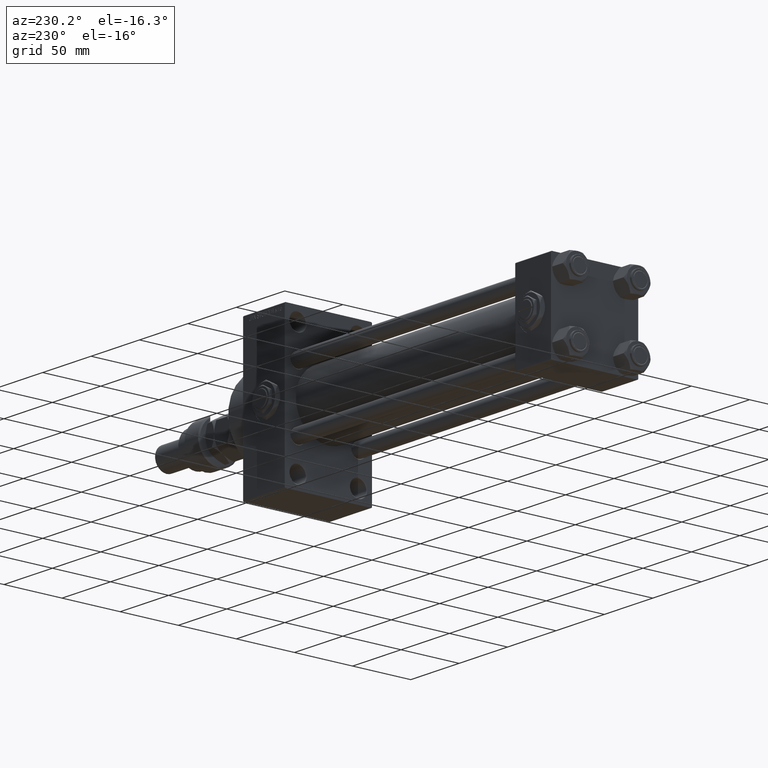
[diagram: clean part render]
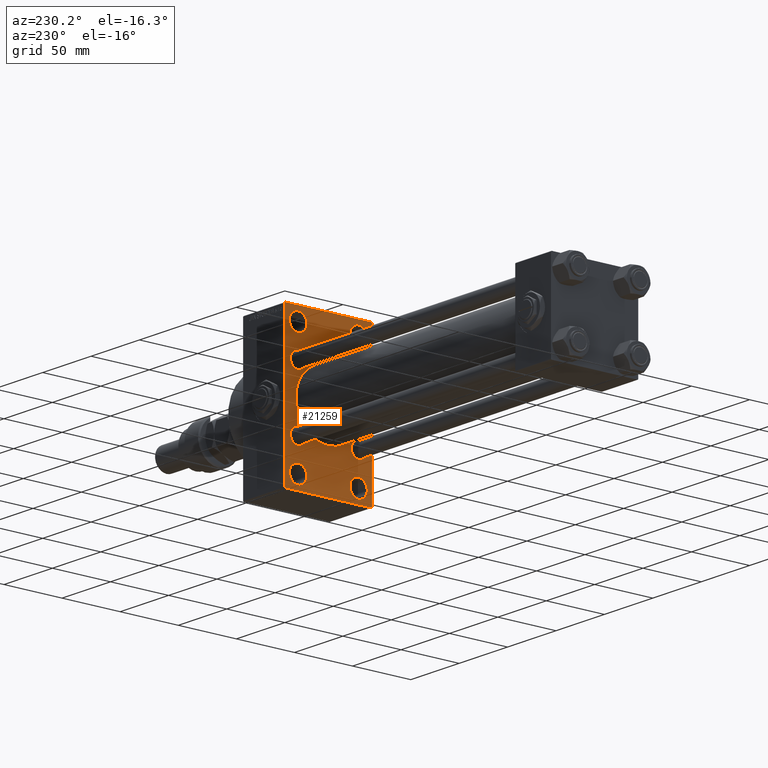
[diagram: same view with one face highlighted and labeled with its STEP entity id]
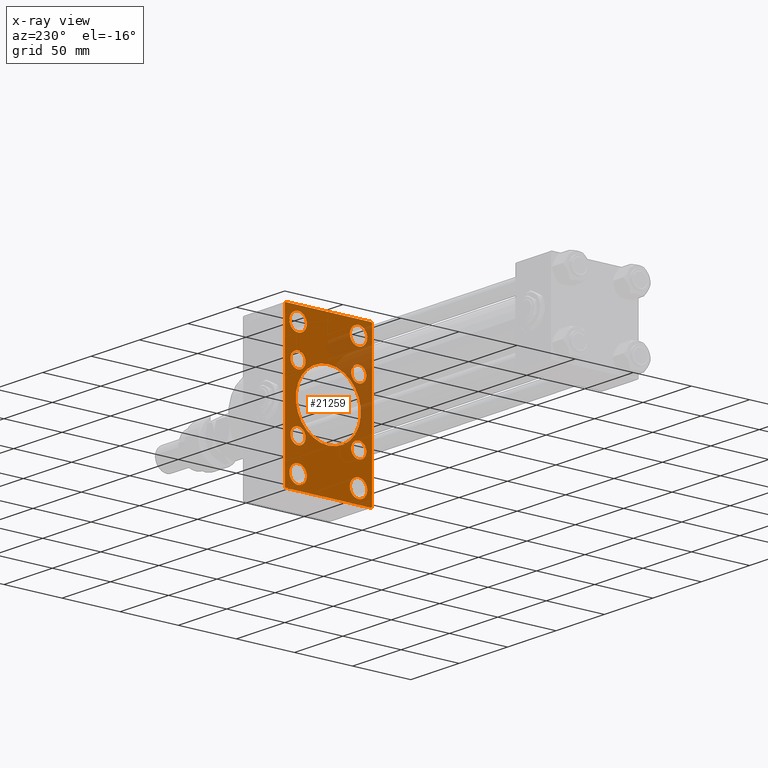
[diagram: x-ray of the same camera — body ghosted, the highlighted face saturated]
A machine part, auxiliary view. The second image highlights one B-rep face of the part: STEP entity #21259.
The next image is the same camera in x-ray: the body ghosted, the highlighted face saturated — about 20% of this face is hidden behind the body in this view.
In plain terms, the highlighted planar face has unit normal (-1, 0, 0).
Its self-contained STEP definition (entity closure, byte-faithful):
#56 = CARTESIAN_POINT ( 'NONE',  ( 274.9999999999999432, -50.49999999999945999, -50.50000000000086686 ) ) ;
#122 = VERTEX_POINT ( 'NONE', #39044 ) ;
#344 = VERTEX_POINT ( 'NONE', #6724 ) ;
#456 = ORIENTED_EDGE ( 'NONE', *, *, #36312, .T. ) ;
#484 = DIRECTION ( 'NONE',  ( 0.000000000000000000, -1.000000000000000000, -1.850371707708594563E-16 ) ) ;
#486 = EDGE_CURVE ( 'NONE', #5936, #3722, #46856, .T. ) ;
#695 = CARTESIAN_POINT ( 'NONE',  ( 274.9999999999999432, 26.00000000000000000, -52.49999999999999289 ) ) ;
#1111 = CIRCLE ( 'NONE', #12107, 28.00000000000000000 ) ;
#1149 = DIRECTION ( 'NONE',  ( 1.000000000000000000, -0.000000000000000000, 0.000000000000000000 ) ) ;
#1190 = VERTEX_POINT ( 'NONE', #16814 ) ;
#1830 = ORIENTED_EDGE ( 'NONE', *, *, #11895, .T. ) ;
#1937 = CARTESIAN_POINT ( 'NONE',  ( 274.9999999999999432, -36.99999999999993605, -64.00000000000001421 ) ) ;
#2570 = ORIENTED_EDGE ( 'NONE', *, *, #37012, .T. ) ;
#2671 = ORIENTED_EDGE ( 'NONE', *, *, #15209, .T. ) ;
#3059 = ORIENTED_EDGE ( 'NONE', *, *, #13664, .T. ) ;
#3081 = ORIENTED_EDGE ( 'NONE', *, *, #13797, .T. ) ;
#3385 = FACE_BOUND ( 'NONE', #49104, .T. ) ;
#3455 = DIRECTION ( 'NONE',  ( 1.000000000000000000, -0.000000000000000000, 0.000000000000000000 ) ) ;
#3653 = VERTEX_POINT ( 'NONE', #20087 ) ;
#3693 = CARTESIAN_POINT ( 'NONE',  ( 274.9999999999999432, -26.14999999999999147, -19.65000000000000213 ) ) ;
#3722 = VERTEX_POINT ( 'NONE', #3693 ) ;
#4012 = EDGE_LOOP ( 'NONE', ( #4338, #47209 ) ) ;
#4067 = EDGE_CURVE ( 'NONE', #1190, #41899, #7223, .T. ) ;
#4338 = ORIENTED_EDGE ( 'NONE', *, *, #33171, .T. ) ;
#4386 = VERTEX_POINT ( 'NONE', #29987 ) ;
#4445 = CARTESIAN_POINT ( 'NONE',  ( 274.9999999999999432, 26.14999999999999858, -26.15000000000000213 ) ) ;
#4500 = CARTESIAN_POINT ( 'NONE',  ( 274.9999999999999432, -26.14999999999999147, 26.15000000000000924 ) ) ;
#4556 = VECTOR ( 'NONE', #35781, 999.9999999999998863 ) ;
#4576 = EDGE_LOOP ( 'NONE', ( #37960, #3081 ) ) ;
#4678 = EDGE_CURVE ( 'NONE', #122, #43245, #8969, .T. ) ;
#5067 = DIRECTION ( 'NONE',  ( -0.000000000000000000, 0.7071067811865524577, 0.7071067811865426878 ) ) ;
#5285 = CIRCLE ( 'NONE', #25549, 7.499999999999951150 ) ;
#5458 = AXIS2_PLACEMENT_3D ( 'NONE', #25910, #37823, #45780 ) ;
#5936 = VERTEX_POINT ( 'NONE', #33344 ) ;
#6065 = EDGE_LOOP ( 'NONE', ( #10240, #6800 ) ) ;
#6680 = LINE ( 'NONE', #38685, #27331 ) ;
#6724 = CARTESIAN_POINT ( 'NONE',  ( 274.9999999999999432, -25.99999999999999645, -45.00000000000004263 ) ) ;
#6800 = ORIENTED_EDGE ( 'NONE', *, *, #31422, .T. ) ;
#6996 = CARTESIAN_POINT ( 'NONE',  ( 274.9999999999999432, 26.14999999999999858, -32.65000000000001279 ) ) ;
#7067 = CARTESIAN_POINT ( 'NONE',  ( 274.9999999999999432, -2.602085213965210642E-15, 0.000000000000000000 ) ) ;
#7223 = CIRCLE ( 'NONE', #30036, 7.499999999999951150 ) ;
#7378 = AXIS2_PLACEMENT_3D ( 'NONE', #18120, #19090, #41938 ) ;
#7409 = ORIENTED_EDGE ( 'NONE', *, *, #47013, .T. ) ;
#7822 = VERTEX_POINT ( 'NONE', #48922 ) ;
#8597 = EDGE_LOOP ( 'NONE', ( #7409, #16562 ) ) ;
#8969 = CIRCLE ( 'NONE', #39362, 28.00000000000000000 ) ;
#9145 = CIRCLE ( 'NONE', #22659, 6.500000000000008882 ) ;
#9336 = VERTEX_POINT ( 'NONE', #15392 ) ;
#9655 = AXIS2_PLACEMENT_3D ( 'NONE', #39638, #15561, #21359 ) ;
#10092 = CIRCLE ( 'NONE', #21907, 7.499999999999951150 ) ;
#10240 = ORIENTED_EDGE ( 'NONE', *, *, #4067, .T. ) ;
#10286 = FACE_OUTER_BOUND ( 'NONE', #44008, .T. ) ;
#10516 = DIRECTION ( 'NONE',  ( 0.000000000000000000, 0.000000000000000000, -1.000000000000000000 ) ) ;
#10541 = CARTESIAN_POINT ( 'NONE',  ( 274.9999999999999432, 0.000000000000000000, 0.000000000000000000 ) ) ;
#10877 = DIRECTION ( 'NONE',  ( 0.000000000000000000, 0.000000000000000000, 1.000000000000000000 ) ) ;
#11055 = FACE_BOUND ( 'NONE', #42134, .T. ) ;
#11219 = ORIENTED_EDGE ( 'NONE', *, *, #20564, .T. ) ;
#11885 = CARTESIAN_POINT ( 'NONE',  ( 274.9999999999999432, 37.50000000000000000, 63.99999999999998579 ) ) ;
#11895 = EDGE_CURVE ( 'NONE', #45105, #344, #22663, .T. ) ;
#12107 = AXIS2_PLACEMENT_3D ( 'NONE', #7067, #23187, #10516 ) ;
#12109 = DIRECTION ( 'NONE',  ( 1.000000000000000000, -0.000000000000000000, 0.000000000000000000 ) ) ;
#12320 = DIRECTION ( 'NONE',  ( 1.000000000000000000, -0.000000000000000000, 0.000000000000000000 ) ) ;
#12335 = EDGE_CURVE ( 'NONE', #47052, #32621, #42118, .T. ) ;
#13389 = DIRECTION ( 'NONE',  ( 0.000000000000000000, 0.000000000000000000, 1.000000000000000000 ) ) ;
#13591 = CARTESIAN_POINT ( 'NONE',  ( 274.9999999999999432, -25.99999999999999645, 52.50000000000000000 ) ) ;
#13654 = VERTEX_POINT ( 'NONE', #31202 ) ;
#13664 = EDGE_CURVE ( 'NONE', #14615, #47591, #51828, .T. ) ;
#13797 = EDGE_CURVE ( 'NONE', #16049, #29552, #36267, .T. ) ;
#14615 = VERTEX_POINT ( 'NONE', #16973 ) ;
#14636 = EDGE_CURVE ( 'NONE', #7822, #49532, #49515, .T. ) ;
#14654 = DIRECTION ( 'NONE',  ( 1.000000000000000000, -0.000000000000000000, 0.000000000000000000 ) ) ;
#14674 = AXIS2_PLACEMENT_3D ( 'NONE', #21804, #43414, #10877 ) ;
#14745 = CARTESIAN_POINT ( 'NONE',  ( 274.9999999999999432, -25.99999999999999645, 45.00000000000004974 ) ) ;
#15209 = EDGE_CURVE ( 'NONE', #3653, #47551, #28714, .T. ) ;
#15288 = VERTEX_POINT ( 'NONE', #46908 ) ;
#15313 = VERTEX_POINT ( 'NONE', #1937 ) ;
#15392 = CARTESIAN_POINT ( 'NONE',  ( 274.9999999999999432, -37.49999999999999289, -63.49999999999997158 ) ) ;
#15561 = DIRECTION ( 'NONE',  ( 1.000000000000000000, -0.000000000000000000, 0.000000000000000000 ) ) ;
#15670 = CARTESIAN_POINT ( 'NONE',  ( 274.9999999999999432, -37.49999999999999289, 63.99999999999997158 ) ) ;
#15775 = CARTESIAN_POINT ( 'NONE',  ( 274.9999999999999432, -26.14999999999999147, 26.15000000000000924 ) ) ;
#16049 = VERTEX_POINT ( 'NONE', #35907 ) ;
#16531 = ORIENTED_EDGE ( 'NONE', *, *, #29321, .T. ) ;
#16562 = ORIENTED_EDGE ( 'NONE', *, *, #486, .T. ) ;
#16814 = CARTESIAN_POINT ( 'NONE',  ( 274.9999999999999432, 26.00000000000000000, -45.00000000000004263 ) ) ;
#16973 = CARTESIAN_POINT ( 'NONE',  ( 274.9999999999999432, 37.50000000000000000, 63.49999999999992895 ) ) ;
#17098 = VERTEX_POINT ( 'NONE', #34819 ) ;
#17808 = EDGE_CURVE ( 'NONE', #7822, #9336, #24922, .T. ) ;
#17999 = DIRECTION ( 'NONE',  ( 0.000000000000000000, 0.000000000000000000, 1.000000000000000000 ) ) ;
#18120 = CARTESIAN_POINT ( 'NONE',  ( 274.9999999999999432, -26.14999999999999147, -26.15000000000000924 ) ) ;
#18436 = AXIS2_PLACEMENT_3D ( 'NONE', #50912, #14654, #47456 ) ;
#18489 = ORIENTED_EDGE ( 'NONE', *, *, #38336, .T. ) ;
#18504 = DIRECTION ( 'NONE',  ( 0.000000000000000000, -5.421010862427522170E-17, -1.000000000000000000 ) ) ;
#18810 = ORIENTED_EDGE ( 'NONE', *, *, #42518, .T. ) ;
#19090 = DIRECTION ( 'NONE',  ( 1.000000000000000000, -0.000000000000000000, 0.000000000000000000 ) ) ;
#19414 = AXIS2_PLACEMENT_3D ( 'NONE', #13591, #1149, #49577 ) ;
#19513 = DIRECTION ( 'NONE',  ( -1.000000000000000000, 0.000000000000000000, -0.000000000000000000 ) ) ;
#19952 = AXIS2_PLACEMENT_3D ( 'NONE', #43665, #3455, #22771 ) ;
#19961 = CARTESIAN_POINT ( 'NONE',  ( 274.9999999999999432, 26.00000000000000000, 52.49999999999999289 ) ) ;
#20087 = CARTESIAN_POINT ( 'NONE',  ( 274.9999999999999432, -25.99999999999999645, 59.99999999999995026 ) ) ;
#20177 = ORIENTED_EDGE ( 'NONE', *, *, #12335, .T. ) ;
#20431 = LINE ( 'NONE', #25182, #29819 ) ;
#20564 = EDGE_CURVE ( 'NONE', #17098, #4386, #10092, .T. ) ;
#20608 = LINE ( 'NONE', #11885, #31847 ) ;
#21259 = ADVANCED_FACE ( 'NONE', ( #11055, #27452, #46540, #23210, #3385, #35646, #51543, #27195, #34621, #10286 ), #50772, .T. ) ;
#21298 = LINE ( 'NONE', #43896, #51702 ) ;
#21353 = DIRECTION ( 'NONE',  ( 0.000000000000000000, 0.000000000000000000, 1.000000000000000000 ) ) ;
#21359 = DIRECTION ( 'NONE',  ( 0.000000000000000000, 0.000000000000000000, 1.000000000000000000 ) ) ;
#21804 = CARTESIAN_POINT ( 'NONE',  ( 274.9999999999999432, -25.99999999999999645, -52.49999999999999289 ) ) ;
#21824 = AXIS2_PLACEMENT_3D ( 'NONE', #4500, #48948, #29614 ) ;
#21907 = AXIS2_PLACEMENT_3D ( 'NONE', #19961, #52246, #48013 ) ;
#22659 = AXIS2_PLACEMENT_3D ( 'NONE', #38111, #42601, #17999 ) ;
#22663 = CIRCLE ( 'NONE', #25203, 7.499999999999951150 ) ;
#22771 = DIRECTION ( 'NONE',  ( 0.000000000000000000, 0.000000000000000000, 1.000000000000000000 ) ) ;
#22813 = EDGE_CURVE ( 'NONE', #38575, #15288, #47211, .T. ) ;
#23187 = DIRECTION ( 'NONE',  ( 1.000000000000000000, 0.000000000000000000, 0.000000000000000000 ) ) ;
#23210 = FACE_BOUND ( 'NONE', #50798, .T. ) ;
#23474 = DIRECTION ( 'NONE',  ( -0.000000000000000000, 0.000000000000000000, 1.000000000000000000 ) ) ;
#23796 = CARTESIAN_POINT ( 'NONE',  ( 274.9999999999999432, -36.99999999999992895, 63.99999999999997158 ) ) ;
#24112 = CARTESIAN_POINT ( 'NONE',  ( 274.9999999999999432, 26.14999999999999858, -19.64999999999999503 ) ) ;
#24922 = LINE ( 'NONE', #15670, #51645 ) ;
#24927 = LINE ( 'NONE', #56, #4556 ) ;
#25182 = CARTESIAN_POINT ( 'NONE',  ( 274.9999999999999432, 37.49999999999999289, -64.00000000000000000 ) ) ;
#25203 = AXIS2_PLACEMENT_3D ( 'NONE', #33011, #48626, #21353 ) ;
#25549 = AXIS2_PLACEMENT_3D ( 'NONE', #35279, #35544, #31324 ) ;
#25819 = DIRECTION ( 'NONE',  ( 1.000000000000000000, -0.000000000000000000, 0.000000000000000000 ) ) ;
#25910 = CARTESIAN_POINT ( 'NONE',  ( 274.9999999999999432, -26.14999999999999147, -26.15000000000000924 ) ) ;
#26344 = VERTEX_POINT ( 'NONE', #37857 ) ;
#26455 = AXIS2_PLACEMENT_3D ( 'NONE', #4445, #12109, #44137 ) ;
#27195 = FACE_BOUND ( 'NONE', #8597, .T. ) ;
#27292 = CIRCLE ( 'NONE', #32360, 6.500000000000008882 ) ;
#27322 = CIRCLE ( 'NONE', #26455, 6.500000000000008882 ) ;
#27331 = VECTOR ( 'NONE', #38171, 1000.000000000000000 ) ;
#27452 = FACE_BOUND ( 'NONE', #37043, .T. ) ;
#28010 = DIRECTION ( 'NONE',  ( 1.000000000000000000, -0.000000000000000000, 0.000000000000000000 ) ) ;
#28100 = DIRECTION ( 'NONE',  ( 0.000000000000000000, -1.000000000000000000, -1.850371707708594563E-16 ) ) ;
#28714 = CIRCLE ( 'NONE', #19414, 7.499999999999951150 ) ;
#29204 = CARTESIAN_POINT ( 'NONE',  ( 274.9999999999999432, 26.00000000000000000, -59.99999999999994316 ) ) ;
#29227 = CARTESIAN_POINT ( 'NONE',  ( 274.9999999999999432, -26.14999999999999147, 32.65000000000001990 ) ) ;
#29321 = EDGE_CURVE ( 'NONE', #13654, #14615, #21298, .T. ) ;
#29400 = CARTESIAN_POINT ( 'NONE',  ( 274.9999999999999432, -50.49999999999969447, 50.50000000000039080 ) ) ;
#29552 = VERTEX_POINT ( 'NONE', #35027 ) ;
#29614 = DIRECTION ( 'NONE',  ( 0.000000000000000000, 0.000000000000000000, 1.000000000000000000 ) ) ;
#29819 = VECTOR ( 'NONE', #28100, 1000.000000000000000 ) ;
#29987 = CARTESIAN_POINT ( 'NONE',  ( 274.9999999999999432, 26.00000000000000000, 59.99999999999994316 ) ) ;
#30036 = AXIS2_PLACEMENT_3D ( 'NONE', #695, #25819, #13389 ) ;
#30295 = VECTOR ( 'NONE', #18504, 1000.000000000000000 ) ;
#30816 = ORIENTED_EDGE ( 'NONE', *, *, #17808, .F. ) ;
#31202 = CARTESIAN_POINT ( 'NONE',  ( 274.9999999999999432, 36.99999999999994316, 63.99999999999998579 ) ) ;
#31324 = DIRECTION ( 'NONE',  ( 0.000000000000000000, 0.000000000000000000, 1.000000000000000000 ) ) ;
#31422 = EDGE_CURVE ( 'NONE', #41899, #1190, #5285, .T. ) ;
#31847 = VECTOR ( 'NONE', #484, 1000.000000000000000 ) ;
#32360 = AXIS2_PLACEMENT_3D ( 'NONE', #15775, #12320, #35617 ) ;
#32389 = EDGE_CURVE ( 'NONE', #15288, #38575, #27292, .T. ) ;
#32621 = VERTEX_POINT ( 'NONE', #6996 ) ;
#33011 = CARTESIAN_POINT ( 'NONE',  ( 274.9999999999999432, -25.99999999999999645, -52.49999999999999289 ) ) ;
#33171 = EDGE_CURVE ( 'NONE', #43245, #122, #1111, .T. ) ;
#33344 = CARTESIAN_POINT ( 'NONE',  ( 274.9999999999999432, -26.14999999999999147, -32.65000000000001990 ) ) ;
#33769 = EDGE_CURVE ( 'NONE', #47591, #26344, #6680, .T. ) ;
#34096 = ORIENTED_EDGE ( 'NONE', *, *, #33769, .T. ) ;
#34621 = FACE_BOUND ( 'NONE', #4012, .T. ) ;
#34819 = CARTESIAN_POINT ( 'NONE',  ( 274.9999999999999432, 26.00000000000000000, 45.00000000000004263 ) ) ;
#35027 = CARTESIAN_POINT ( 'NONE',  ( 274.9999999999999432, 26.14999999999999858, 32.65000000000001990 ) ) ;
#35116 = EDGE_CURVE ( 'NONE', #26344, #15313, #20431, .T. ) ;
#35134 = CIRCLE ( 'NONE', #19952, 7.499999999999951150 ) ;
#35279 = CARTESIAN_POINT ( 'NONE',  ( 274.9999999999999432, 26.00000000000000000, -52.49999999999999289 ) ) ;
#35544 = DIRECTION ( 'NONE',  ( 1.000000000000000000, -0.000000000000000000, 0.000000000000000000 ) ) ;
#35617 = DIRECTION ( 'NONE',  ( 0.000000000000000000, 0.000000000000000000, 1.000000000000000000 ) ) ;
#35646 = FACE_BOUND ( 'NONE', #4576, .T. ) ;
#35677 = CARTESIAN_POINT ( 'NONE',  ( 274.9999999999999432, -25.99999999999999645, -59.99999999999994316 ) ) ;
#35781 = DIRECTION ( 'NONE',  ( 0.000000000000000000, -0.7071067811865574537, 0.7071067811865376918 ) ) ;
#35907 = CARTESIAN_POINT ( 'NONE',  ( 274.9999999999999432, 26.14999999999999858, 19.64999999999999147 ) ) ;
#36267 = CIRCLE ( 'NONE', #41323, 6.500000000000008882 ) ;
#36312 = EDGE_CURVE ( 'NONE', #32621, #47052, #27322, .T. ) ;
#36658 = ORIENTED_EDGE ( 'NONE', *, *, #35116, .T. ) ;
#37012 = EDGE_CURVE ( 'NONE', #15313, #9336, #24927, .T. ) ;
#37043 = EDGE_LOOP ( 'NONE', ( #47963, #1830 ) ) ;
#37476 = CIRCLE ( 'NONE', #14674, 7.499999999999951150 ) ;
#37823 = DIRECTION ( 'NONE',  ( 1.000000000000000000, -0.000000000000000000, 0.000000000000000000 ) ) ;
#37857 = CARTESIAN_POINT ( 'NONE',  ( 274.9999999999999432, 36.99999999999999289, -64.00000000000000000 ) ) ;
#37937 = EDGE_CURVE ( 'NONE', #344, #45105, #37476, .T. ) ;
#37960 = ORIENTED_EDGE ( 'NONE', *, *, #51382, .T. ) ;
#38017 = ORIENTED_EDGE ( 'NONE', *, *, #14636, .T. ) ;
#38111 = CARTESIAN_POINT ( 'NONE',  ( 274.9999999999999432, 26.14999999999999858, 26.15000000000000213 ) ) ;
#38171 = DIRECTION ( 'NONE',  ( -0.000000000000000000, -0.7071067811865573427, -0.7071067811865378028 ) ) ;
#38336 = EDGE_CURVE ( 'NONE', #4386, #17098, #38388, .T. ) ;
#38388 = CIRCLE ( 'NONE', #9655, 7.499999999999951150 ) ;
#38575 = VERTEX_POINT ( 'NONE', #29227 ) ;
#38685 = CARTESIAN_POINT ( 'NONE',  ( 274.9999999999999432, 50.49999999999948841, -50.50000000000088107 ) ) ;
#39044 = CARTESIAN_POINT ( 'NONE',  ( 274.9999999999999432, 8.269258236473784371E-16, -28.00000000000000000 ) ) ;
#39362 = AXIS2_PLACEMENT_3D ( 'NONE', #46537, #50237, #42293 ) ;
#39638 = CARTESIAN_POINT ( 'NONE',  ( 274.9999999999999432, 26.00000000000000000, 52.49999999999999289 ) ) ;
#39915 = CARTESIAN_POINT ( 'NONE',  ( 274.9999999999999432, 26.14999999999999858, 26.15000000000000213 ) ) ;
#40385 = CARTESIAN_POINT ( 'NONE',  ( 274.9999999999999432, 37.49999999999999289, -63.50000000000001421 ) ) ;
#40791 = DIRECTION ( 'NONE',  ( 0.000000000000000000, 0.000000000000000000, -1.000000000000000000 ) ) ;
#41118 = EDGE_LOOP ( 'NONE', ( #20177, #456 ) ) ;
#41166 = CIRCLE ( 'NONE', #7378, 6.500000000000008882 ) ;
#41323 = AXIS2_PLACEMENT_3D ( 'NONE', #39915, #28010, #44417 ) ;
#41401 = DIRECTION ( 'NONE',  ( 0.000000000000000000, 0.7071067811865474617, -0.7071067811865474617 ) ) ;
#41899 = VERTEX_POINT ( 'NONE', #29204 ) ;
#41938 = DIRECTION ( 'NONE',  ( 0.000000000000000000, 0.000000000000000000, 1.000000000000000000 ) ) ;
#42118 = CIRCLE ( 'NONE', #18436, 6.500000000000008882 ) ;
#42134 = EDGE_LOOP ( 'NONE', ( #2671, #18810 ) ) ;
#42293 = DIRECTION ( 'NONE',  ( 0.000000000000000000, 0.000000000000000000, -1.000000000000000000 ) ) ;
#42518 = EDGE_CURVE ( 'NONE', #47551, #3653, #35134, .T. ) ;
#42601 = DIRECTION ( 'NONE',  ( 1.000000000000000000, -0.000000000000000000, 0.000000000000000000 ) ) ;
#42816 = ORIENTED_EDGE ( 'NONE', *, *, #48758, .F. ) ;
#43245 = VERTEX_POINT ( 'NONE', #48823 ) ;
#43414 = DIRECTION ( 'NONE',  ( 1.000000000000000000, -0.000000000000000000, 0.000000000000000000 ) ) ;
#43665 = CARTESIAN_POINT ( 'NONE',  ( 274.9999999999999432, -25.99999999999999645, 52.50000000000000000 ) ) ;
#43896 = CARTESIAN_POINT ( 'NONE',  ( 274.9999999999999432, 50.49999999999996447, 50.49999999999996447 ) ) ;
#44008 = EDGE_LOOP ( 'NONE', ( #36658, #2570, #30816, #38017, #42816, #16531, #3059, #34096 ) ) ;
#44137 = DIRECTION ( 'NONE',  ( 0.000000000000000000, 0.000000000000000000, 1.000000000000000000 ) ) ;
#44376 = ORIENTED_EDGE ( 'NONE', *, *, #32389, .T. ) ;
#44417 = DIRECTION ( 'NONE',  ( 0.000000000000000000, 0.000000000000000000, 1.000000000000000000 ) ) ;
#45105 = VERTEX_POINT ( 'NONE', #35677 ) ;
#45595 = AXIS2_PLACEMENT_3D ( 'NONE', #10541, #19513, #23474 ) ;
#45780 = DIRECTION ( 'NONE',  ( 0.000000000000000000, 0.000000000000000000, 1.000000000000000000 ) ) ;
#45838 = ORIENTED_EDGE ( 'NONE', *, *, #22813, .T. ) ;
#46537 = CARTESIAN_POINT ( 'NONE',  ( 274.9999999999999432, -2.602085213965210642E-15, 0.000000000000000000 ) ) ;
#46540 = FACE_BOUND ( 'NONE', #6065, .T. ) ;
#46856 = CIRCLE ( 'NONE', #5458, 6.500000000000008882 ) ;
#46908 = CARTESIAN_POINT ( 'NONE',  ( 274.9999999999999432, -26.14999999999999147, 19.65000000000000213 ) ) ;
#47013 = EDGE_CURVE ( 'NONE', #3722, #5936, #41166, .T. ) ;
#47052 = VERTEX_POINT ( 'NONE', #24112 ) ;
#47209 = ORIENTED_EDGE ( 'NONE', *, *, #4678, .T. ) ;
#47211 = CIRCLE ( 'NONE', #21824, 6.500000000000008882 ) ;
#47301 = VECTOR ( 'NONE', #5067, 1000.000000000000000 ) ;
#47456 = DIRECTION ( 'NONE',  ( 0.000000000000000000, 0.000000000000000000, 1.000000000000000000 ) ) ;
#47551 = VERTEX_POINT ( 'NONE', #14745 ) ;
#47591 = VERTEX_POINT ( 'NONE', #40385 ) ;
#47963 = ORIENTED_EDGE ( 'NONE', *, *, #37937, .T. ) ;
#48013 = DIRECTION ( 'NONE',  ( 0.000000000000000000, 0.000000000000000000, 1.000000000000000000 ) ) ;
#48626 = DIRECTION ( 'NONE',  ( 1.000000000000000000, -0.000000000000000000, 0.000000000000000000 ) ) ;
#48758 = EDGE_CURVE ( 'NONE', #13654, #49532, #20608, .T. ) ;
#48823 = CARTESIAN_POINT ( 'NONE',  ( 274.9999999999999432, -2.602085213965210642E-15, 28.00000000000000000 ) ) ;
#48922 = CARTESIAN_POINT ( 'NONE',  ( 274.9999999999999432, -37.49999999999999289, 63.49999999999991473 ) ) ;
#48948 = DIRECTION ( 'NONE',  ( 1.000000000000000000, -0.000000000000000000, 0.000000000000000000 ) ) ;
#49104 = EDGE_LOOP ( 'NONE', ( #45838, #44376 ) ) ;
#49515 = LINE ( 'NONE', #29400, #47301 ) ;
#49532 = VERTEX_POINT ( 'NONE', #23796 ) ;
#49577 = DIRECTION ( 'NONE',  ( 0.000000000000000000, 0.000000000000000000, 1.000000000000000000 ) ) ;
#50237 = DIRECTION ( 'NONE',  ( 1.000000000000000000, 0.000000000000000000, 0.000000000000000000 ) ) ;
#50772 = PLANE ( 'NONE',  #45595 ) ;
#50798 = EDGE_LOOP ( 'NONE', ( #18489, #11219 ) ) ;
#50912 = CARTESIAN_POINT ( 'NONE',  ( 274.9999999999999432, 26.14999999999999858, -26.15000000000000213 ) ) ;
#51382 = EDGE_CURVE ( 'NONE', #29552, #16049, #9145, .T. ) ;
#51543 = FACE_BOUND ( 'NONE', #41118, .T. ) ;
#51577 = CARTESIAN_POINT ( 'NONE',  ( 274.9999999999999432, 37.50000000000000000, 63.99999999999998579 ) ) ;
#51645 = VECTOR ( 'NONE', #40791, 1000.000000000000000 ) ;
#51702 = VECTOR ( 'NONE', #41401, 1000.000000000000114 ) ;
#51828 = LINE ( 'NONE', #51577, #30295 ) ;
#52246 = DIRECTION ( 'NONE',  ( 1.000000000000000000, -0.000000000000000000, 0.000000000000000000 ) ) ;